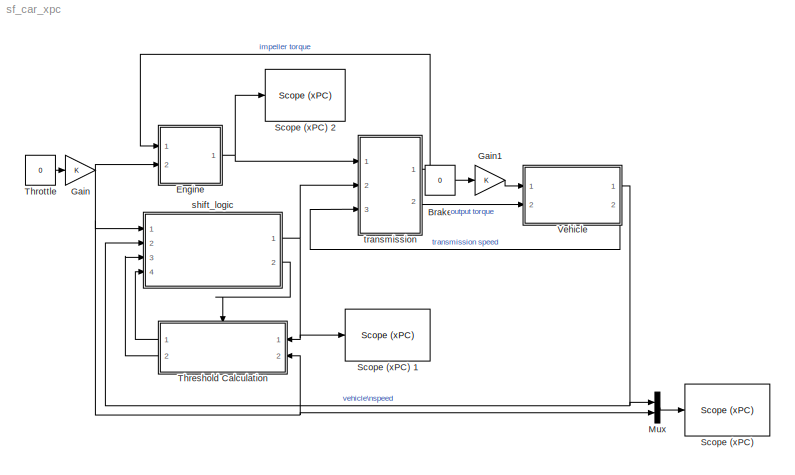
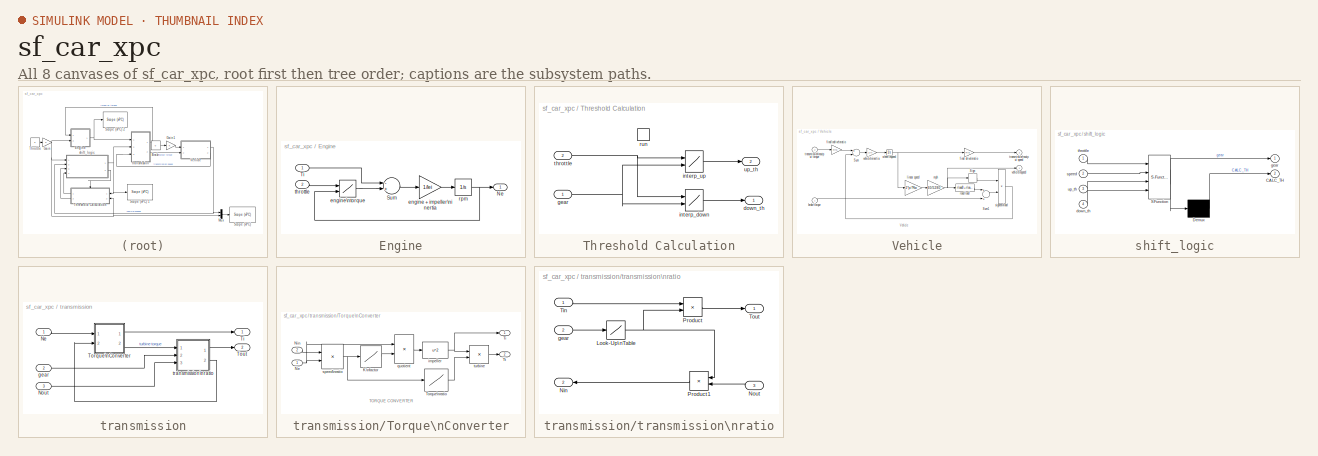
[diagram: thumbnail index - all 8 canvases of the model, root first then tree order]
MODEL sf_car_xpc
KIND model
CONFIG PreLoadFcn = load sf_cardat
BLOCK [Constant] Brake
  Value = 0
BLOCK [SubSystem] Engine
  MinAlgLoopOccurrences = off
  Ports = [2, 1]
  PropExecContextAcrossSSBoundary = on
  RTWSystemCode = Auto
  TreatAsAtomicUnit = off
BLOCK [Outport] Engine/Ne
  IconDisplay = Port number
  InitialOutput = 0
BLOCK [Sum] Engine/Sum
  Inputs = -+
  Ports = [2, 1]
BLOCK [Inport] Engine/Ti
  IconDisplay = Port number
  LatchInput = off
BLOCK [Gain] Engine/engine + impeller\ninertia
  Gain = 1/Iei
BLOCK [Lookup2D] Engine/engine\ntorque
  ColumnIndex = nevec
  DialogController = Simulink.DDGSource
  OutputValues = emap
  RowIndex = thvec
BLOCK [Integrator] Engine/rpm
  InitialCondition = 1000
  LimitOutput = on
  LowerSaturationLimit = 600
  Ports = [1, 1]
  UpperSaturationLimit = 6000
BLOCK [Inport] Engine/throttle
  IconDisplay = Port number
  LatchInput = off
  Port = 2
BLOCK [Gain] Gain
BLOCK [Gain] Gain1
BLOCK [Mux] Mux
  Inputs = 2
  Ports = [2, 1]
BLOCK [Reference] Scope (xPC)   REF=xpclib/Misc./Scope (xPC) 
  Ports = [1]
  ShowPortLabels = on
  SourceBlock = xpclib/Misc./Scope (xPC)
  SourceType = xpcscopeblock
  autorestart = off
  autostart = on
  filename = data.dat
  formatstr = '%15.6f'
  grid = on
  interleave = 50
  mode = Lazy
  noprepostsamples = 0
  nosamples = 1000
  scopeno = 1
  scopetype = Target
  triggerlevel = 0.0
  triggermode = FreeRun
  triggersample = 0
  triggerscope = 1
  triggersignal = 1
  triggerslope = Either
  viewmode = Graphical rolling
  writesize = 512
  ylimits = [0,160]
BLOCK [Reference] Scope (xPC) 1  REF=xpclib/Misc./Scope (xPC) 
  Ports = [1]
  ShowPortLabels = on
  SourceBlock = xpclib/Misc./Scope (xPC)
  SourceType = xpcscopeblock
  autorestart = off
  autostart = on
  filename = data.dat
  formatstr = '%15.6f'
  grid = on
  interleave = 1
  mode = Lazy
  noprepostsamples = 0
  nosamples = 50
  scopeno = 3
  scopetype = Target
  triggerlevel = 0.0
  triggermode = FreeRun
  triggersample = 0
  triggerscope = 1
  triggersignal = 1
  triggerslope = Either
  viewmode = Numerical
  writesize = 512
  ylimits = [0,180]
BLOCK [Reference] Scope (xPC) 2  REF=xpclib/Misc./Scope (xPC) 
  Ports = [1]
  ShowPortLabels = on
  SourceBlock = xpclib/Misc./Scope (xPC)
  SourceType = xpcscopeblock
  autorestart = off
  autostart = on
  filename = data.dat
  formatstr = '%15.6f'
  grid = on
  interleave = 50
  mode = Lazy
  noprepostsamples = 0
  nosamples = 1000
  scopeno = 2
  scopetype = Target
  triggerlevel = 0.0
  triggermode = FreeRun
  triggersample = 0
  triggerscope = 1
  triggersignal = 1
  triggerslope = Either
  viewmode = Graphical rolling
  writesize = 512
  ylimits = [0,6000]
BLOCK [SubSystem] Threshold Calculation
  MinAlgLoopOccurrences = off
  Ports = [2, 2, 0, 1]
  PropExecContextAcrossSSBoundary = on
  RTWSystemCode = Auto
  TreatAsAtomicUnit = on
BLOCK [Outport] Threshold Calculation/down_th
  IconDisplay = Port number
BLOCK [Inport] Threshold Calculation/gear
  IconDisplay = Port number
  LatchInput = off
BLOCK [Lookup2D] Threshold Calculation/interp_down
  ColumnIndex = [1:4]
  DialogController = Simulink.DDGSource
  OutputValues = downtab
  RowIndex = downth
BLOCK [Lookup2D] Threshold Calculation/interp_up
  ColumnIndex = [1:4]
  DialogController = Simulink.DDGSource
  OutputValues = uptab
  RowIndex = upth
BLOCK [TriggerPort] Threshold Calculation/run
  Ports = []
  StatesWhenEnabling = reset
  TriggerType = function-call
BLOCK [Inport] Threshold Calculation/throttle
  IconDisplay = Port number
  LatchInput = off
  Port = 2
BLOCK [Outport] Threshold Calculation/up_th
  IconDisplay = Port number
  Port = 2
BLOCK [Constant] Throttle
  Value = 0
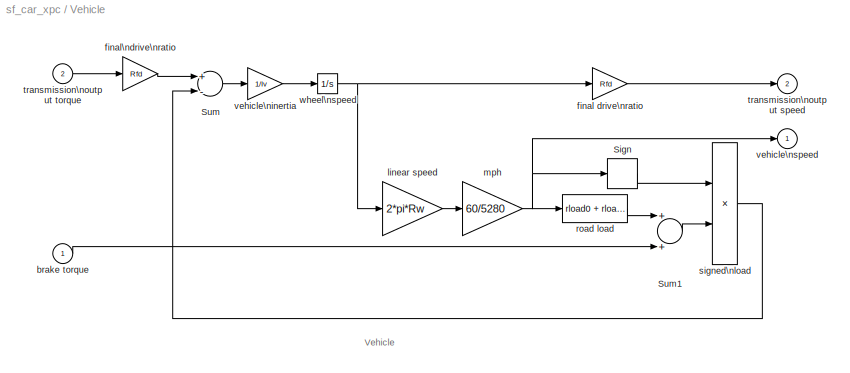
BLOCK [SubSystem] Vehicle
  MaskCallbackString = |||||
  MaskDescription = vehicle dynamics: torque input from trans., outputs are input speed (transmission output) and vehicle speed
  MaskDisplay = plot([cos(pi*[0:5:360]/180) + 6], [sin(pi*[0:5:360]/180) + 1.5],[cos(pi*[0:5:360]/180) + 1], [sin(pi*[0:5:360]/180) + 4], [10 7.5 6.75], [3.5 1 1.5], [10 9.75 7.5 6.25 3 1.5 4 5 7.5], [3.5 4.75 5.5 7 8 7 6 4 5.5], [6.5 4], [7 6], [5.25 2], [2 4], [7.5 1 0], [2.5 6 6.5], [7.5 7.25 9.75], [1 2.25 4.75], [2.75 2 0 0 0.25], [7.5 8 6.5 5.25 5], [1.5 0.5], [6.75 6.25])
  MaskEnableString = on,on,on,on,on,on
  MaskIconFrame = on
  MaskIconOpaque = on
  MaskIconRotate = port
  MaskIconUnits = autoscale
  MaskInitialization = Rfd = @1; rload0 = @2; rload2 = @3; Rw = @4; Iv = @5; N20 = @6;
  MaskPromptString = final drive ratio | drag friction at wheels | aerodynamic drag | wheel radius | vehicle inertia | initial transmission output speed
  MaskStyleString = edit,edit,edit,edit,edit,edit
  MaskTabNameString = ,,,,,
  MaskToolTipString = on,on,on,on,on,on
  MaskTunableValueString = on,on,on,on,on,on
  MaskType = vehicle model
  MaskValueString = vehicledata(1)|vehicledata(2)|vehicledata(3)|vehicledata(4)|vehicledata(5)|vehicledata(6)/vehicledata(4)*vehicledata(1)
  MaskVarAliasString = ,,,,,
  MaskVisibilityString = on,on,on,on,on,on
  MinAlgLoopOccurrences = off
  Ports = [2, 2]
  PropExecContextAcrossSSBoundary = on
  RTWSystemCode = Auto
  ShowPortLabels = off
  TreatAsAtomicUnit = off
BLOCK [Signum] Vehicle/Sign
BLOCK [Sum] Vehicle/Sum
  Inputs = +-
  Ports = [2, 1]
BLOCK [Sum] Vehicle/Sum1
  Ports = [2, 1]
BLOCK [Inport] Vehicle/brake torque
  IconDisplay = Port number
  LatchInput = off
BLOCK [Gain] Vehicle/final drive\nratio
  Gain = Rfd
BLOCK [Gain] Vehicle/final\ndrive\nratio
  Gain = Rfd
BLOCK [Gain] Vehicle/linear speed
  Gain = 2*pi*Rw
BLOCK [Gain] Vehicle/mph
  Gain = 60/5280
BLOCK [Fcn] Vehicle/road load
  Expr = rload0 + rload2*u^2
BLOCK [Product] Vehicle/signed\nload
  Ports = [2, 1]
  RndMeth = Floor
BLOCK [Outport] Vehicle/transmission\noutput speed
  IconDisplay = Port number
  InitialOutput = 0
  Port = 2
BLOCK [Inport] Vehicle/transmission\noutput torque
  IconDisplay = Port number
  LatchInput = off
  Port = 2
BLOCK [Gain] Vehicle/vehicle\ninertia
  Gain = 1/Iv
BLOCK [Outport] Vehicle/vehicle\nspeed
  IconDisplay = Port number
  InitialOutput = 0
BLOCK [Integrator] Vehicle/wheel\nspeed
  InitialCondition = N20/Rfd
  Ports = [1, 1]
BLOCK [SubSystem] shift_logic
  MaskDescription = Stateflow diagram
  MaskDisplay = plot(sf('Private','sfblk','xIcon'),sf('Private','sfblk','yIcon'));text(0.5,0,sf('Private', 'sfblk', 'tIcon'),'HorizontalAl','Center','VerticalAl','Bottom');
  MaskIconFrame = off
  MaskIconOpaque = off
  MaskIconRotate = none
  MaskIconUnits = autoscale
  MaskSelfModifiable = on
  MaskType = Stateflow
  MinAlgLoopOccurrences = off
  Ports = [4, 2]
  PropExecContextAcrossSSBoundary = on
  RTWSystemCode = Auto
  TreatAsAtomicUnit = off
BLOCK [Demux] shift_logic/ Demux 
  Outputs = 1
  Ports = [1, 1]
BLOCK [S-Function] shift_logic/ SFunction 
  FunctionName = sf_sfun
  Parameters = TWAIT
  PortCounts = [4 2]
  Ports = [4, 2]
  Tag = Stateflow S-Function sf_car_xpc 1
BLOCK [Outport] shift_logic/CALC_TH
  IconDisplay = Port number
  Port = 2
BLOCK [Inport] shift_logic/down_th
  IconDisplay = Port number
  LatchInput = off
  Port = 4
BLOCK [Outport] shift_logic/gear
  IconDisplay = Port number
BLOCK [Inport] shift_logic/speed
  IconDisplay = Port number
  LatchInput = off
  Port = 2
BLOCK [Inport] shift_logic/throttle
  IconDisplay = Port number
  LatchInput = off
BLOCK [Inport] shift_logic/up_th
  IconDisplay = Port number
  LatchInput = off
  Port = 3
BLOCK [SubSystem] transmission
  MinAlgLoopOccurrences = off
  Ports = [3, 2]
  PropExecContextAcrossSSBoundary = on
  RTWSystemCode = Auto
  TreatAsAtomicUnit = off
BLOCK [Inport] transmission/Ne
  IconDisplay = Port number
  LatchInput = off
BLOCK [Inport] transmission/Nout
  IconDisplay = Port number
  LatchInput = off
  Port = 3
BLOCK [Outport] transmission/Ti
  IconDisplay = Port number
  InitialOutput = 0
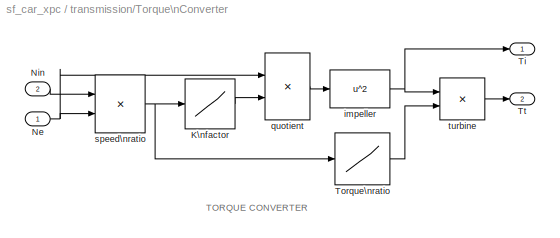
BLOCK [SubSystem] transmission/Torque\nConverter
  MaskCallbackString = ||
  MaskDescription = torque converter
  MaskDisplay = plot([cos([90:10:450]*pi/180),.63*cos([90:10:450]*pi/180),.63*cos([90:10:240]*pi/180),cos([240:10:300]*pi/180),.63*cos([300]*pi/180)],[sin([90:10:450]*pi/180),.63*sin([90:10:450]*pi/180)+.1,.63*sin([90:10:240]*pi/180)+.1,sin([240:10:300]*pi/180),.63*sin([300]*pi/180)+.1])
  MaskEnableString = on,on,on
  MaskHelp = Torque converter input and output torques are computed as a function of the input and output speeds
  MaskIconFrame = on
  MaskIconOpaque = on
  MaskIconRotate = none
  MaskIconUnits = autoscale
  MaskPromptString = speed ratio | K factor | torque ratio
  MaskStyleString = edit,edit,edit
  MaskTabNameString = ,,
  MaskToolTipString = on,on,on
  MaskTunableValueString = on,on,on
  MaskType = torque converter
  MaskValueString = converter_data(:,1)|converter_data(:,2)|converter_data(:,3)
  MaskVarAliasString = ,,
  MaskVariables = speedratio=@1;Kfactor=@2;Torkratio=@3;
  MaskVisibilityString = on,on,on
  MinAlgLoopOccurrences = off
  Ports = [2, 2]
  PropExecContextAcrossSSBoundary = on
  RTWSystemCode = Auto
  ShowPortLabels = off
  TreatAsAtomicUnit = off
BLOCK [Lookup] transmission/Torque\nConverter/K\nfactor
  DialogController = Simulink.DDGSource
  InputValues = speedratio
  OutputValues = Kfactor
BLOCK [Inport] transmission/Torque\nConverter/Ne
  IconDisplay = Port number
  LatchInput = off
BLOCK [Inport] transmission/Torque\nConverter/Nin
  IconDisplay = Port number
  LatchInput = off
  Port = 2
BLOCK [Outport] transmission/Torque\nConverter/Ti
  IconDisplay = Port number
  InitialOutput = 0
BLOCK [Lookup] transmission/Torque\nConverter/Torque\nratio
  DialogController = Simulink.DDGSource
  InputValues = speedratio
  OutputValues = Torkratio
BLOCK [Outport] transmission/Torque\nConverter/Tt
  IconDisplay = Port number
  InitialOutput = 0
  Port = 2
BLOCK [Fcn] transmission/Torque\nConverter/impeller
  Expr = u^2
BLOCK [Product] transmission/Torque\nConverter/quotient
  Inputs = */
  Ports = [2, 1]
  RndMeth = Floor
BLOCK [Product] transmission/Torque\nConverter/speed\nratio
  Inputs = */
  Ports = [2, 1]
  RndMeth = Floor
BLOCK [Product] transmission/Torque\nConverter/turbine
  Ports = [2, 1]
  RndMeth = Floor
BLOCK [Outport] transmission/Tout
  IconDisplay = Port number
  InitialOutput = 0
  Port = 2
BLOCK [Inport] transmission/gear
  IconDisplay = Port number
  LatchInput = off
  Port = 2
BLOCK [SubSystem] transmission/transmission\nratio
  MinAlgLoopOccurrences = off
  Ports = [3, 2]
  PropExecContextAcrossSSBoundary = on
  RTWSystemCode = Auto
  TreatAsAtomicUnit = off
BLOCK [Lookup] transmission/transmission\nratio/Look-Up\nTable
  DialogController = Simulink.DDGSource
  InputValues = [1 2 3 4]
  OutputValues = [2.393 1.450 1.000 0.677]
BLOCK [Outport] transmission/transmission\nratio/Nin
  IconDisplay = Port number
  InitialOutput = 0
  Port = 2
BLOCK [Inport] transmission/transmission\nratio/Nout
  IconDisplay = Port number
  LatchInput = off
  Port = 3
BLOCK [Product] transmission/transmission\nratio/Product
  Ports = [2, 1]
  RndMeth = Floor
BLOCK [Product] transmission/transmission\nratio/Product1
  Ports = [2, 1]
  RndMeth = Floor
BLOCK [Inport] transmission/transmission\nratio/Tin
  IconDisplay = Port number
  LatchInput = off
BLOCK [Outport] transmission/transmission\nratio/Tout
  IconDisplay = Port number
  InitialOutput = 0
BLOCK [Inport] transmission/transmission\nratio/gear
  IconDisplay = Port number
  LatchInput = off
  Port = 2
ANNOTATION Vehicle: Vehicle
ANNOTATION transmission/Torque\nConverter: TORQUE CONVERTER
LINE Brake:1 -> Gain1:1
LINE Engine/Sum:1 -> Engine/engine + impeller\ninertia:1
LINE Engine/Ti:1 -> Engine/Sum:1
LINE Engine/engine + impeller\ninertia:1 -> Engine/rpm:1
LINE Engine/engine\ntorque:1 -> Engine/Sum:2
NET Engine/rpm:1 -> Engine/Ne:1, Engine/engine\ntorque:2
LINE Engine/throttle:1 -> Engine/engine\ntorque:1
NET Engine:1 -> Scope (xPC) 2:1, transmission:1
LINE Gain1:1 -> Vehicle:1
NET Gain:1 -> Engine:2, Mux:2, Threshold Calculation:2, shift_logic:1
LINE Mux:1 -> Scope (xPC) :1
NET Threshold Calculation/gear:1 -> Threshold Calculation/interp_down:2, Threshold Calculation/interp_up:2
LINE Threshold Calculation/interp_down:1 -> Threshold Calculation/down_th:1
LINE Threshold Calculation/interp_up:1 -> Threshold Calculation/up_th:1
NET Threshold Calculation/throttle:1 -> Threshold Calculation/interp_down:1, Threshold Calculation/interp_up:1
LINE Threshold Calculation:1 -> shift_logic:4
LINE Threshold Calculation:2 -> shift_logic:3
LINE Throttle:1 -> Gain:1
LINE Vehicle/Sign:1 -> Vehicle/signed\nload:1
LINE Vehicle/Sum1:1 -> Vehicle/signed\nload:2
LINE Vehicle/Sum:1 -> Vehicle/vehicle\ninertia:1
LINE Vehicle/brake torque:1 -> Vehicle/Sum1:2
LINE Vehicle/final drive\nratio:1 -> Vehicle/transmission\noutput speed:1
LINE Vehicle/final\ndrive\nratio:1 -> Vehicle/Sum:1
LINE Vehicle/linear speed:1 -> Vehicle/mph:1
NET Vehicle/mph:1 -> Vehicle/Sign:1, Vehicle/road load:1, Vehicle/vehicle\nspeed:1
LINE Vehicle/road load:1 -> Vehicle/Sum1:1
LINE Vehicle/signed\nload:1 -> Vehicle/Sum:2
LINE Vehicle/transmission\noutput torque:1 -> Vehicle/final\ndrive\nratio:1
LINE Vehicle/vehicle\ninertia:1 -> Vehicle/wheel\nspeed:1
NET Vehicle/wheel\nspeed:1 -> Vehicle/final drive\nratio:1, Vehicle/linear speed:1
NET Vehicle:1 -> Mux:1, shift_logic:2
LINE Vehicle:2 -> transmission:3
LINE shift_logic/ Demux :1 -> shift_logic/CALC_TH:1
LINE shift_logic/ SFunction :1 -> shift_logic/ Demux :1
LINE shift_logic/ SFunction :2 -> shift_logic/gear:1
LINE shift_logic/down_th:1 -> shift_logic/ SFunction :4
LINE shift_logic/speed:1 -> shift_logic/ SFunction :2
LINE shift_logic/throttle:1 -> shift_logic/ SFunction :1
LINE shift_logic/up_th:1 -> shift_logic/ SFunction :3
NET shift_logic:1 -> Scope (xPC) 1:1, Threshold Calculation:1, transmission:2
LINE shift_logic:2 -> Threshold Calculation:trigger
LINE transmission/Ne:1 -> transmission/Torque\nConverter:1
LINE transmission/Nout:1 -> transmission/transmission\nratio:3
LINE transmission/Torque\nConverter/K\nfactor:1 -> transmission/Torque\nConverter/quotient:2
NET transmission/Torque\nConverter/Ne:1 -> transmission/Torque\nConverter/quotient:1, transmission/Torque\nConverter/speed\nratio:2
LINE transmission/Torque\nConverter/Nin:1 -> transmission/Torque\nConverter/speed\nratio:1
LINE transmission/Torque\nConverter/Torque\nratio:1 -> transmission/Torque\nConverter/turbine:2
NET transmission/Torque\nConverter/impeller:1 -> transmission/Torque\nConverter/Ti:1, transmission/Torque\nConverter/turbine:1
LINE transmission/Torque\nConverter/quotient:1 -> transmission/Torque\nConverter/impeller:1
NET transmission/Torque\nConverter/speed\nratio:1 -> transmission/Torque\nConverter/K\nfactor:1, transmission/Torque\nConverter/Torque\nratio:1
LINE transmission/Torque\nConverter/turbine:1 -> transmission/Torque\nConverter/Tt:1
LINE transmission/Torque\nConverter:1 -> transmission/Ti:1
LINE transmission/Torque\nConverter:2 -> transmission/transmission\nratio:1
LINE transmission/gear:1 -> transmission/transmission\nratio:2
NET transmission/transmission\nratio/Look-Up\nTable:1 -> transmission/transmission\nratio/Product1:1, transmission/transmission\nratio/Product:2
LINE transmission/transmission\nratio/Nout:1 -> transmission/transmission\nratio/Product1:2
LINE transmission/transmission\nratio/Product1:1 -> transmission/transmission\nratio/Nin:1
LINE transmission/transmission\nratio/Product:1 -> transmission/transmission\nratio/Tout:1
LINE transmission/transmission\nratio/Tin:1 -> transmission/transmission\nratio/Product:1
LINE transmission/transmission\nratio/gear:1 -> transmission/transmission\nratio/Look-Up\nTable:1
LINE transmission/transmission\nratio:1 -> transmission/Tout:1
LINE transmission/transmission\nratio:2 -> transmission/Torque\nConverter:2
LINE transmission:1 -> Engine:1
LINE transmission:2 -> Vehicle:2
note: NET lines group one-source signal fan-out (src -> all destinations, sorted); 1:1 wires keep LINE
CHART shift_logic states=9 transitions=14
  STATE_LABEL 'downshifting'
  STATE_LABEL 'gear_state'
  STATE_LABEL 'fourth\\nentry: gear = 4;'
  STATE_LABEL 'second\\nentry: gear = 2;'
  STATE_LABEL 'third\\nentry: gear = 3;'
  STATE_LABEL 'first\\nentry: gear = 1;'
  STATE_LABEL 'selection_state\\nduring: CALC_TH;'
  STATE_LABEL 'upshifting'
  STATE_LABEL 'steady_state'
